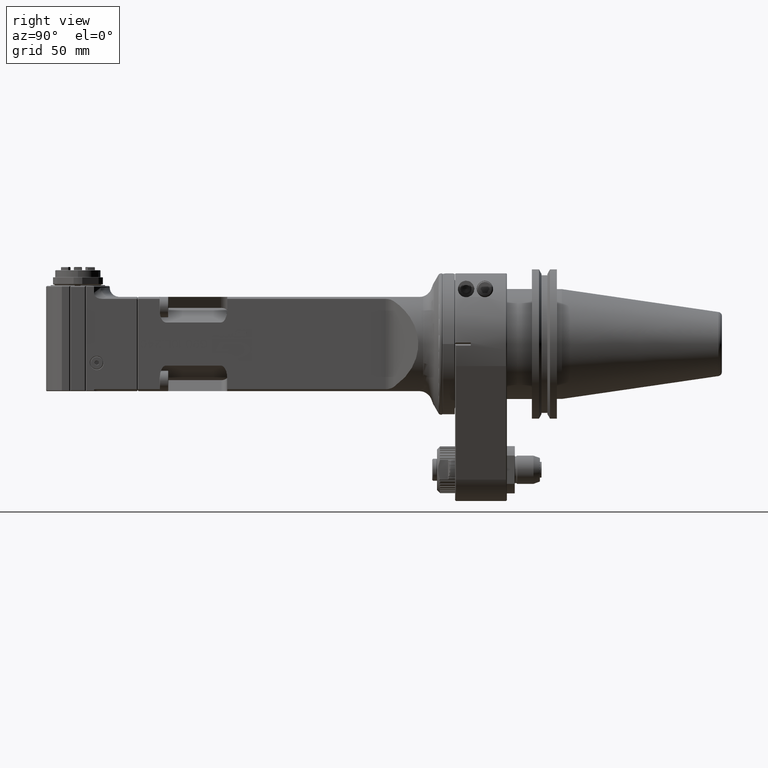
[diagram: clean part render]
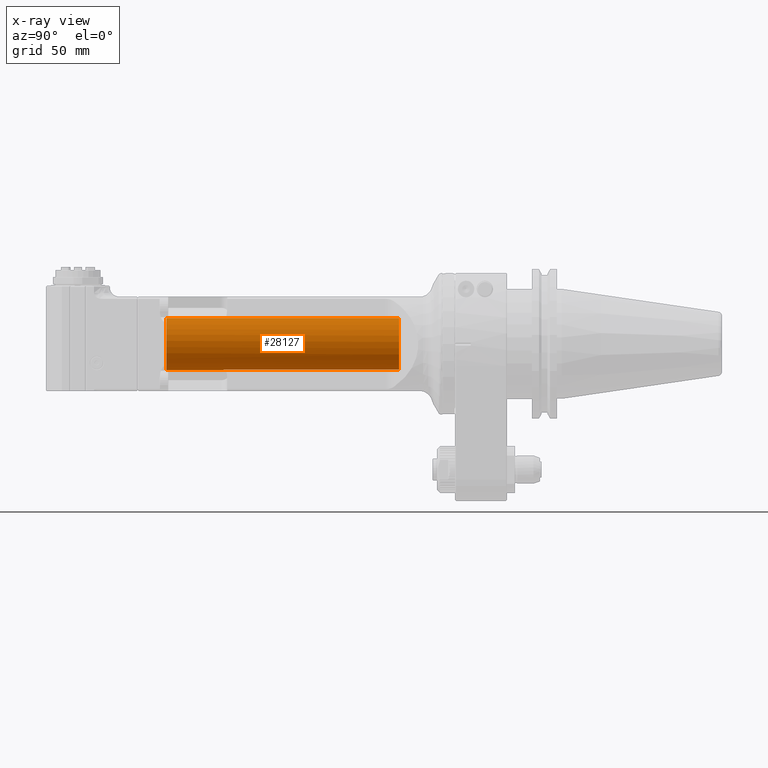
[diagram: x-ray — body ghosted, one internal face saturated and labeled with its STEP entity id]
A machine part, right view, then the same camera in x-ray: the body is ghosted and one INTERNAL B-rep face — a face not visible from any outside direction — is saturated and labeled: STEP entity #28127.
In plain terms, the highlighted cylindrical surface (bore or boss wall) has radius 16.5 mm, axis along (0, -1, -0).
Its self-contained STEP definition (entity closure, byte-faithful):
#1648=CIRCLE('',#30739,16.5);
#1649=CIRCLE('',#30740,16.5);
#1650=CIRCLE('',#30742,16.5);
#2208=CYLINDRICAL_SURFACE('',#30741,16.5);
#3746=FACE_OUTER_BOUND('',#5447,.T.);
#5447=EDGE_LOOP('',(#25539,#25540,#25541,#25542,#25543));
#8088=LINE('',#52827,#10723);
#10723=VECTOR('',#38488,16.5);
#13370=VERTEX_POINT('',#52820);
#13371=VERTEX_POINT('',#52821);
#13372=VERTEX_POINT('',#52826);
#17433=EDGE_CURVE('',#13370,#13371,#1648,.T.);
#17434=EDGE_CURVE('',#13371,#13370,#1649,.T.);
#17436=EDGE_CURVE('',#13370,#13372,#8088,.T.);
#17437=EDGE_CURVE('',#13372,#13372,#1650,.T.);
#25539=ORIENTED_EDGE('',*,*,#17433,.T.);
#25540=ORIENTED_EDGE('',*,*,#17434,.T.);
#25541=ORIENTED_EDGE('',*,*,#17436,.T.);
#25542=ORIENTED_EDGE('',*,*,#17437,.F.);
#25543=ORIENTED_EDGE('',*,*,#17436,.F.);
#28127=ADVANCED_FACE('',(#3746),#2208,.F.);
#30739=AXIS2_PLACEMENT_3D('',#52822,#38481,#38482);
#30740=AXIS2_PLACEMENT_3D('',#52823,#38483,#38484);
#30741=AXIS2_PLACEMENT_3D('',#52825,#38486,#38487);
#30742=AXIS2_PLACEMENT_3D('',#52828,#38489,#38490);
#38481=DIRECTION('center_axis',(0.,-1.,0.));
#38482=DIRECTION('ref_axis',(1.,0.,0.));
#38483=DIRECTION('center_axis',(0.,-1.,0.));
#38484=DIRECTION('ref_axis',(1.,0.,0.));
#38486=DIRECTION('center_axis',(0.,1.,0.));
#38487=DIRECTION('ref_axis',(1.,0.,0.));
#38488=DIRECTION('',(0.,1.,0.));
#38489=DIRECTION('center_axis',(0.,-1.,0.));
#38490=DIRECTION('ref_axis',(1.,0.,0.));
#52820=CARTESIAN_POINT('',(-16.5,60.5991166595732,1.40982728528806E-10));
#52821=CARTESIAN_POINT('',(-5.21038033693031E-14,60.5991166595732,16.5));
#52822=CARTESIAN_POINT('Origin',(0.,60.5991166595732,0.));
#52823=CARTESIAN_POINT('Origin',(0.,60.5991166595732,0.));
#52825=CARTESIAN_POINT('Origin',(0.,-11.4,0.));
#52826=CARTESIAN_POINT('',(-16.5,208.6,2.02066721859313E-15));
#52827=CARTESIAN_POINT('',(-16.5,-11.4,2.02066721859313E-15));
#52828=CARTESIAN_POINT('Origin',(2.555224934709E-14,208.6,0.));